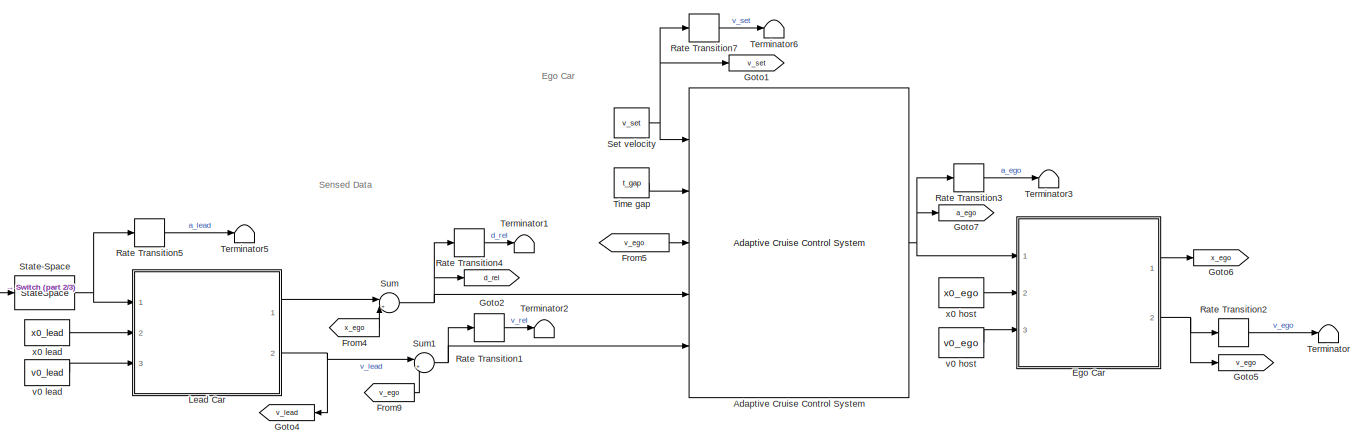
[diagram: root canvas - part 1/3, full width, top band]
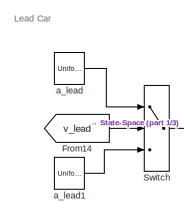
[diagram: root canvas - part 2/3, middle left region]
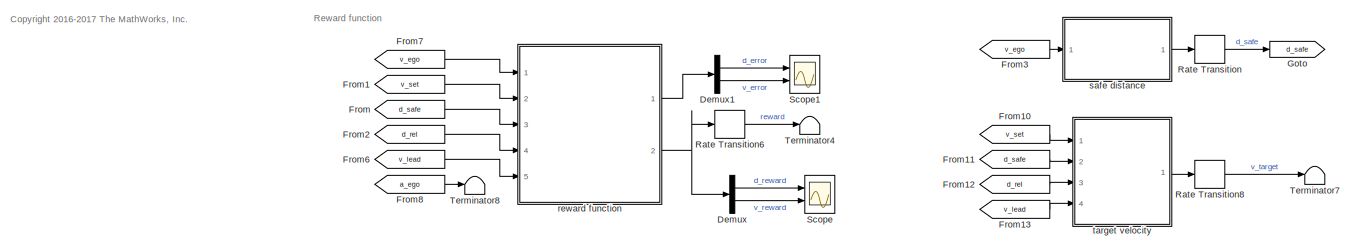
[diagram: root canvas - part 3/3, full width, bottom band]
MODEL slx_5ba62f3f7bfb
KIND model
CONFIG AbsTol = auto
CONFIG EnableMultiTasking = off
CONFIG FixedStep = Ts
CONFIG MaxStep = auto
CONFIG MinStep = auto
CONFIG RelTol = 1e-3
CONFIG SampleTimeConstraint = Unconstrained
CONFIG SolverName = FixedStepAuto
CONFIG StartFcn = a_lead_seed = simCount;\nsimCount = simCount + 1;
CONFIG StartTime = 0.0
CONFIG StopTime = T
BLOCK [Reference] Adaptive Cruise Control System  REF=mpcadaslib/Adaptive Cruise Control System
  Ports = [5, 1]
  SourceBlock = mpcadaslib/Adaptive Cruise Control System
  SourceProductBaseCode = MP
  SourceType = Adaptive cruise control (ACC) system
BLOCK [Demux] Demux
  Outputs = 2
  Ports = [1, 2]
BLOCK [Demux] Demux1
  Outputs = 2
  Ports = [1, 2]
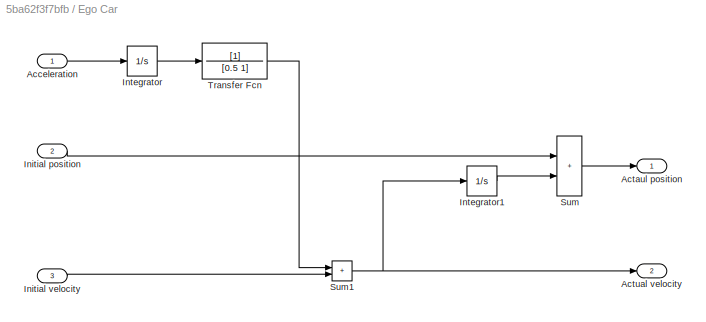
BLOCK [SubSystem] Ego Car
  Ports = [3, 2]
  RequestExecContextInheritance = off
BLOCK [Inport] Ego Car/Acceleration
BLOCK [Outport] Ego Car/Actaul position
  VectorParamsAs1DForOutWhenUnconnected = off
BLOCK [Outport] Ego Car/Actual velocity
  Port = 2
  VectorParamsAs1DForOutWhenUnconnected = off
BLOCK [Inport] Ego Car/Initial position
  Port = 2
BLOCK [Inport] Ego Car/Initial velocity
  Port = 3
BLOCK [Integrator] Ego Car/Integrator
  Ports = [1, 1]
BLOCK [Integrator] Ego Car/Integrator1
  Ports = [1, 1]
BLOCK [Sum] Ego Car/Sum
  IconShape = rectangular
  Ports = [2, 1]
BLOCK [Sum] Ego Car/Sum1
  IconShape = rectangular
  Ports = [2, 1]
BLOCK [TransferFcn] Ego Car/Transfer Fcn
  Denominator = [0.5 1]
BLOCK [From] From
  GotoTag = d_safe
BLOCK [From] From1
  GotoTag = v_set
BLOCK [From] From10
  GotoTag = v_set
BLOCK [From] From11
  GotoTag = d_safe
BLOCK [From] From12
  GotoTag = d_rel
BLOCK [From] From13
  GotoTag = v_lead
BLOCK [From] From14
  GotoTag = v_lead
BLOCK [From] From2
  GotoTag = d_rel
BLOCK [From] From3
  GotoTag = v_ego
BLOCK [From] From4
  GotoTag = x_ego
BLOCK [From] From5
  GotoTag = v_ego
BLOCK [From] From6
  GotoTag = v_lead
BLOCK [From] From7
  GotoTag = v_ego
BLOCK [From] From8
  GotoTag = a_ego
BLOCK [From] From9
  GotoTag = v_ego
BLOCK [Goto] Goto
  GotoTag = d_safe
BLOCK [Goto] Goto1
  GotoTag = v_set
BLOCK [Goto] Goto2
  GotoTag = d_rel
BLOCK [Goto] Goto4
  GotoTag = v_lead
BLOCK [Goto] Goto5
  GotoTag = v_ego
BLOCK [Goto] Goto6
  GotoTag = x_ego
BLOCK [Goto] Goto7
  GotoTag = a_ego
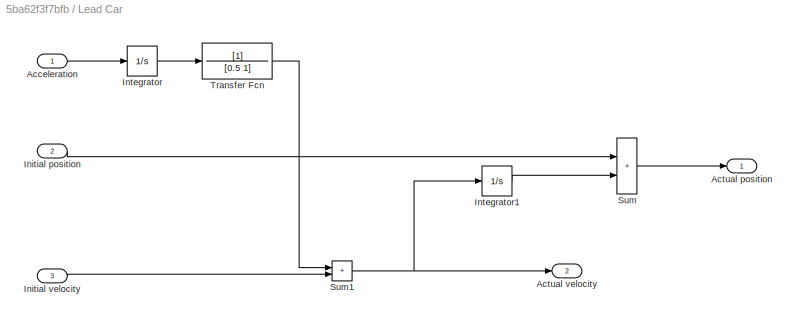
BLOCK [SubSystem] Lead Car
  Ports = [3, 2]
  RequestExecContextInheritance = off
BLOCK [Inport] Lead Car/Acceleration
BLOCK [Outport] Lead Car/Actual position
  VectorParamsAs1DForOutWhenUnconnected = off
BLOCK [Outport] Lead Car/Actual velocity
  Port = 2
  VectorParamsAs1DForOutWhenUnconnected = off
BLOCK [Inport] Lead Car/Initial position
  Port = 2
BLOCK [Inport] Lead Car/Initial velocity
  Port = 3
BLOCK [Integrator] Lead Car/Integrator
  Ports = [1, 1]
BLOCK [Integrator] Lead Car/Integrator1
  Ports = [1, 1]
BLOCK [Sum] Lead Car/Sum
  IconShape = rectangular
  Ports = [2, 1]
BLOCK [Sum] Lead Car/Sum1
  IconShape = rectangular
  Ports = [2, 1]
BLOCK [TransferFcn] Lead Car/Transfer Fcn
  Denominator = [0.5 1]
BLOCK [RateTransition] Rate Transition
  OutPortSampleTime = Ts_data
BLOCK [RateTransition] Rate Transition1
  OutPortSampleTime = Ts_data
BLOCK [RateTransition] Rate Transition2
  OutPortSampleTime = Ts_data
BLOCK [RateTransition] Rate Transition3
  OutPortSampleTime = Ts_data
BLOCK [RateTransition] Rate Transition4
  OutPortSampleTime = Ts_data
BLOCK [RateTransition] Rate Transition5
  OutPortSampleTime = Ts_data
BLOCK [RateTransition] Rate Transition6
  OutPortSampleTime = Ts_data
BLOCK [RateTransition] Rate Transition7
  OutPortSampleTime = Ts_data
BLOCK [RateTransition] Rate Transition8
  OutPortSampleTime = Ts_data
BLOCK [Scope] Scope
  Floating = off
  NumInputPorts = 2
  Ports = [2]
  ScopeSpecificationString = Simulink.scopes.TimeScopeBlockCfg('CurrentConfiguration', extmgr.ConfigurationSet(extmgr.Configuration('Core','General UI',true),extmgr.Configuration('Core','Source UI',true),extmgr.Configuration('Sources','WiredSimulink',true),extmgr.Configuration('Visuals','Time Domain',true,'SerializedDisplays',{struct('MinYLimReal','-1.21988','MaxYLimReal','1.24665','YLabelReal','','MinYLimMag','0.00000','MaxY...<+1367ch>
BLOCK [Scope] Scope1
  Floating = off
  NumInputPorts = 2
  Ports = [2]
  ScopeSpecificationString = Simulink.scopes.TimeScopeBlockCfg('CurrentConfiguration', extmgr.ConfigurationSet(extmgr.Configuration('Core','General UI',true),extmgr.Configuration('Core','Source UI',true),extmgr.Configuration('Sources','WiredSimulink',true,'DataLoggingVariableName','ScopeData1'),extmgr.Configuration('Visuals','Time Domain',true,'SerializedDisplays',{struct('MinYLimReal','-5.625','MaxYLimReal','0.625','YLabelRe...<+1392ch>
BLOCK [Constant] Set velocity
  SampleTime = Ts
  Value = v_set
BLOCK [StateSpace] State-Space
  A = -10
  B = 10
  D = 0
  InitialCondition = 0
  NameLocation = top
  Ports = [1, 1]
BLOCK [Sum] Sum
  Inputs = |+-
  Ports = [2, 1]
BLOCK [Sum] Sum1
  Inputs = |+-
  Ports = [2, 1]
BLOCK [Switch] Switch
  Criteria = u2 > Threshold
  InputSameDT = off
  SaturateOnIntegerOverflow = off
  Threshold = vmin_lead
BLOCK [Terminator] Terminator
BLOCK [Terminator] Terminator1
BLOCK [Terminator] Terminator2
BLOCK [Terminator] Terminator3
BLOCK [Terminator] Terminator4
BLOCK [Terminator] Terminator5
BLOCK [Terminator] Terminator6
BLOCK [Terminator] Terminator7
BLOCK [Terminator] Terminator8
BLOCK [Constant] Time gap
  SampleTime = Ts
  Value = t_gap
BLOCK [UniformRandomNumber] a_lead
  Maximum = amax_lead
  Minimum = amin_lead
  SampleTime = change_freq
  Seed = a_lead_seed
  VectorParams1D = off
BLOCK [UniformRandomNumber] a_lead1
  Maximum = amax_lead
  Minimum = 0
  SampleTime = change_freq
  Seed = a_lead_seed
  VectorParams1D = off
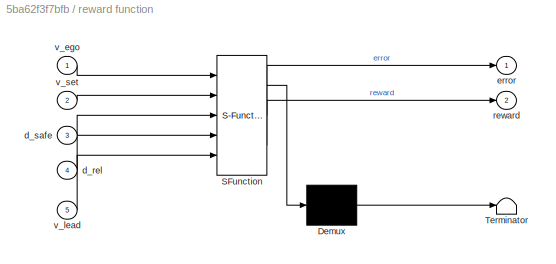
BLOCK [SubSystem] reward function
  ErrorFcn = Stateflow.Translate.translate
  PermitHierarchicalResolution = ExplicitOnly
  Ports = [5, 2]
  RequestExecContextInheritance = off
  SFBlockType = MATLAB Function
  TreatAsAtomicUnit = on
BLOCK [Demux] reward function/ Demux 
  Outputs = 1
  Ports = [1, 1]
BLOCK [S-Function] reward function/ SFunction 
  EnableBusSupport = off
  FunctionName = sf_sfun
  PortCounts = [5 3]
  Ports = [5, 3]
  SFcnIsStateOwnerBlock = off
  SFunctionDeploymentMode = off
  Tag = Stateflow S-Function 2
BLOCK [Terminator] reward function/ Terminator 
BLOCK [Inport] reward function/d_rel
  Port = 4
BLOCK [Inport] reward function/d_safe
  Port = 3
BLOCK [Outport] reward function/error
BLOCK [Outport] reward function/reward
  Port = 2
BLOCK [Inport] reward function/v_ego
BLOCK [Inport] reward function/v_lead
  Port = 5
BLOCK [Inport] reward function/v_set
  Port = 2
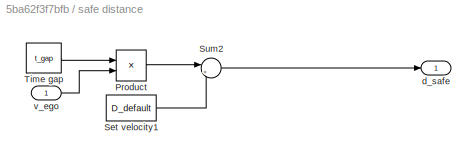
BLOCK [SubSystem] safe distance
  Ports = [1, 1]
  RequestExecContextInheritance = off
BLOCK [Product] safe distance/Product
  Ports = [2, 1]
BLOCK [Constant] safe distance/Set velocity1
  SampleTime = Ts
  Value = D_default
BLOCK [Sum] safe distance/Sum2
  Inputs = |++
  Ports = [2, 1]
BLOCK [Constant] safe distance/Time gap
  SampleTime = Ts
  Value = t_gap
BLOCK [Outport] safe distance/d_safe
BLOCK [Inport] safe distance/v_ego
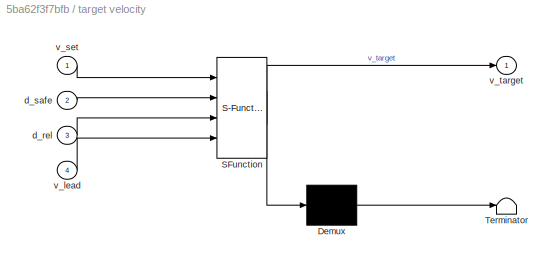
BLOCK [SubSystem] target velocity
  ErrorFcn = Stateflow.Translate.translate
  PermitHierarchicalResolution = ExplicitOnly
  Ports = [4, 1]
  RequestExecContextInheritance = off
  SFBlockType = MATLAB Function
  TreatAsAtomicUnit = on
BLOCK [Demux] target velocity/ Demux 
  Outputs = 1
  Ports = [1, 1]
BLOCK [S-Function] target velocity/ SFunction 
  EnableBusSupport = off
  FunctionName = sf_sfun
  PortCounts = [4 2]
  Ports = [4, 2]
  SFcnIsStateOwnerBlock = off
  SFunctionDeploymentMode = off
  Tag = Stateflow S-Function 1
BLOCK [Terminator] target velocity/ Terminator 
BLOCK [Inport] target velocity/d_rel
  Port = 3
BLOCK [Inport] target velocity/d_safe
  Port = 2
BLOCK [Inport] target velocity/v_lead
  Port = 4
BLOCK [Inport] target velocity/v_set
BLOCK [Outport] target velocity/v_target
BLOCK [Constant] v0 host
  SampleTime = Ts
  Value = v0_ego
BLOCK [Constant] v0 lead
  SampleTime = Ts
  Value = v0_lead
BLOCK [Constant] x0 host
  SampleTime = Ts
  Value = x0_ego
BLOCK [Constant] x0 lead
  SampleTime = Ts
  Value = x0_lead
ANNOTATION (root): <copyright redacted>
ANNOTATION (root): Ego Car
ANNOTATION (root): Lead Car
ANNOTATION (root): Reward function
ANNOTATION (root): Sensed Data
NET Adaptive Cruise Control System:1 -> Ego Car:1, Goto7:1, Rate Transition3:1
LINE Demux1:1 -> Scope1:1
LINE Demux1:2 -> Scope1:2
LINE Demux:1 -> Scope:1
LINE Demux:2 -> Scope:2
LINE Ego Car/Acceleration:1 -> Ego Car/Integrator:1
LINE Ego Car/Initial position:1 -> Ego Car/Sum:1
LINE Ego Car/Initial velocity:1 -> Ego Car/Sum1:2
LINE Ego Car/Integrator1:1 -> Ego Car/Sum:2
LINE Ego Car/Integrator:1 -> Ego Car/Transfer Fcn:1
NET Ego Car/Sum1:1 -> Ego Car/Actual velocity:1, Ego Car/Integrator1:1
LINE Ego Car/Sum:1 -> Ego Car/Actaul position:1
LINE Ego Car/Transfer Fcn:1 -> Ego Car/Sum1:1
LINE Ego Car:1 -> Goto6:1
NET Ego Car:2 -> Goto5:1, Rate Transition2:1
LINE From10:1 -> target velocity:1
LINE From11:1 -> target velocity:2
LINE From12:1 -> target velocity:3
LINE From13:1 -> target velocity:4
LINE From14:1 -> Switch:2
LINE From1:1 -> reward function:2
LINE From2:1 -> reward function:4
LINE From3:1 -> safe distance:1
LINE From4:1 -> Sum:2
LINE From5:1 -> Adaptive Cruise Control System:3
LINE From6:1 -> reward function:5
LINE From7:1 -> reward function:1
LINE From8:1 -> Terminator8:1
LINE From9:1 -> Sum1:2
LINE From:1 -> reward function:3
LINE Lead Car/Acceleration:1 -> Lead Car/Integrator:1
LINE Lead Car/Initial position:1 -> Lead Car/Sum:1
LINE Lead Car/Initial velocity:1 -> Lead Car/Sum1:2
LINE Lead Car/Integrator1:1 -> Lead Car/Sum:2
LINE Lead Car/Integrator:1 -> Lead Car/Transfer Fcn:1
NET Lead Car/Sum1:1 -> Lead Car/Actual velocity:1, Lead Car/Integrator1:1
LINE Lead Car/Sum:1 -> Lead Car/Actual position:1
LINE Lead Car/Transfer Fcn:1 -> Lead Car/Sum1:1
LINE Lead Car:1 -> Sum:1
NET Lead Car:2 -> Goto4:1, Sum1:1
LINE Rate Transition1:1 -> Terminator2:1
LINE Rate Transition2:1 -> Terminator:1
LINE Rate Transition3:1 -> Terminator3:1
LINE Rate Transition4:1 -> Terminator1:1
LINE Rate Transition5:1 -> Terminator5:1
LINE Rate Transition6:1 -> Terminator4:1
LINE Rate Transition7:1 -> Terminator6:1
LINE Rate Transition8:1 -> Terminator7:1
LINE Rate Transition:1 -> Goto:1
NET Set velocity:1 -> Adaptive Cruise Control System:1, Goto1:1, Rate Transition7:1
NET State-Space:1 -> Lead Car:1, Rate Transition5:1
NET Sum1:1 -> Adaptive Cruise Control System:5, Rate Transition1:1
NET Sum:1 -> Adaptive Cruise Control System:4, Goto2:1, Rate Transition4:1
LINE Switch:1 -> State-Space:1
LINE Time gap:1 -> Adaptive Cruise Control System:2
LINE a_lead1:1 -> Switch:3
LINE a_lead:1 -> Switch:1
LINE reward function:1 -> Demux1:1
NET reward function:2 -> Demux:1, Rate Transition6:1
LINE safe distance/Product:1 -> safe distance/Sum2:1
LINE safe distance/Set velocity1:1 -> safe distance/Sum2:2
LINE safe distance/Sum2:1 -> safe distance/d_safe:1
LINE safe distance/Time gap:1 -> safe distance/Product:1
LINE safe distance/v_ego:1 -> safe distance/Product:2
LINE safe distance:1 -> Rate Transition:1
LINE target velocity:1 -> Rate Transition8:1
LINE v0 host:1 -> Ego Car:3
LINE v0 lead:1 -> Lead Car:3
LINE x0 host:1 -> Ego Car:2
LINE x0 lead:1 -> Lead Car:2
note: NET lines group one-source signal fan-out (src -> all destinations, sorted); 1:1 wires keep LINE
CHART target velocity states=1 transitions=1
  STATE_LABEL 'eML_blk_kernel()'
  STATE_LABEL 'SCRIPT:\nfunction v_target = fcn(v_set, d_safe, d_rel, v_lead)\n\nif d_rel <= d_safe\n    v_target =  min(v_set, v_lead);\nelse\n    v_target =  v_set;\nend'
CHART reward function states=1 transitions=1
  STATE_LABEL 'eML_blk_kernel()'
  STATE_LABEL 'SCRIPT:\nfunction [error, reward]= fcn(v_ego, v_set, d_safe, d_rel, v_lead)\n\n\n% If the relative distance is less than the safe distance, \n% the ego car tracks the minimum of the lead car velocity and driver-set velocity\n\nif d_rel <= d_safe\n    v_error = v_ego - min(v_set, v_lead);\nelse\n    v_error = v_ego - v_set;\nend\n\n% reward for velocity [-1,1]\nv_reward = -2*tanh(abs(v_error/2)) + 1;\n\n% reward f...<+208ch>'
CHART  states=0 transitions=0
CHART  states=0 transitions=0
